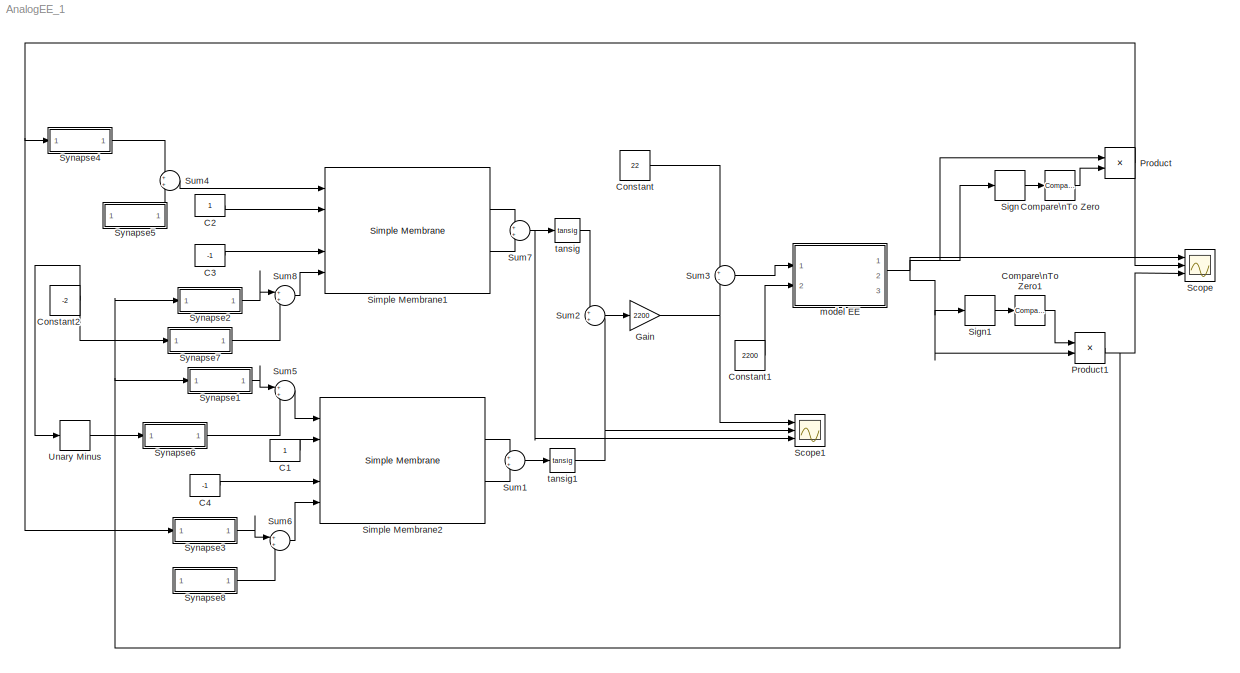
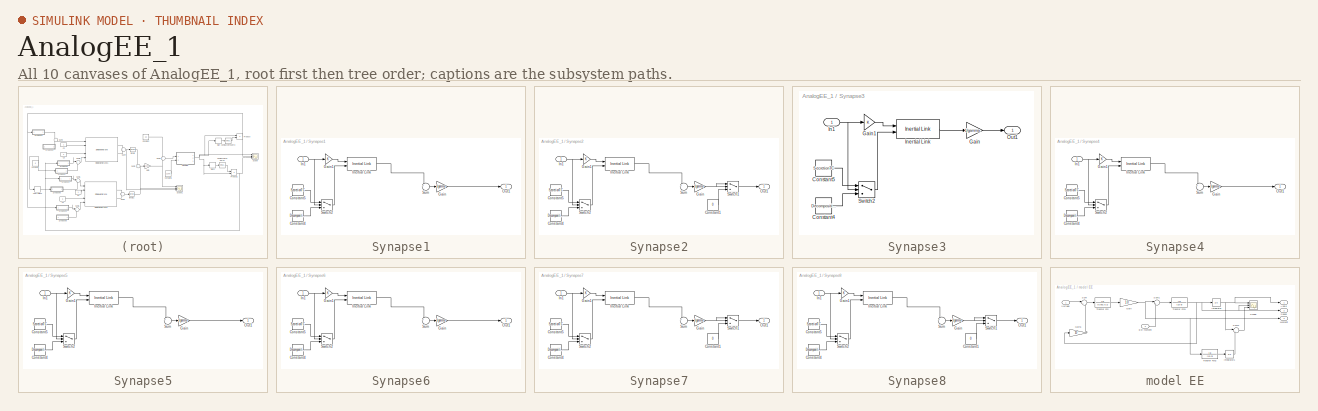
[diagram: thumbnail index - all 10 canvases of the model, root first then tree order]
MODEL AnalogEE_1
KIND model
BLOCK [Constant] C1
  OutDataType = sfix(16)
  OutScaling = 2^0
  SID = 1
BLOCK [Constant] C2
  OutDataType = sfix(16)
  OutScaling = 2^0
  SID = 2
BLOCK [Constant] C3
  OutDataType = sfix(16)
  OutScaling = 2^0
  SID = 3
  Value = -1
BLOCK [Constant] C4
  OutDataType = sfix(16)
  OutScaling = 2^0
  SID = 4
  Value = -1
BLOCK [Reference] Compare\nTo Zero  REF=simulink/Logic and Bit\nOperations/Compare\nTo Zero
  FunctionWithSeparateData = off
  LogicOutDataTypeMode = uint8
  Ports = [1, 1]
  RTWMemSecDataConstants = Inherit from model
  RTWMemSecDataInternal = Inherit from model
  RTWMemSecDataParameters = Inherit from model
  RTWMemSecFuncExecute = Inherit from model
  RTWMemSecFuncInitTerm = Inherit from model
  SID = 5
  ShowPortLabels = FromPortIcon
  SourceBlock = simulink/Logic and Bit\nOperations/Compare\nTo Zero
  SourceType = Compare To Zero
  SystemSampleTime = -1
  ZeroCross = off
  relop = >=
BLOCK [Reference] Compare\nTo Zero1  REF=simulink/Logic and Bit\nOperations/Compare\nTo Zero
  FunctionWithSeparateData = off
  LogicOutDataTypeMode = uint8
  Ports = [1, 1]
  RTWMemSecDataConstants = Inherit from model
  RTWMemSecDataInternal = Inherit from model
  RTWMemSecDataParameters = Inherit from model
  RTWMemSecFuncExecute = Inherit from model
  RTWMemSecFuncInitTerm = Inherit from model
  SID = 6
  ShowPortLabels = FromPortIcon
  SourceBlock = simulink/Logic and Bit\nOperations/Compare\nTo Zero
  SourceType = Compare To Zero
  SystemSampleTime = -1
  ZeroCross = off
  relop = <
BLOCK [Constant] Constant
  OutDataType = sfix(16)
  OutScaling = 2^0
  SID = 7
  Value = 22
BLOCK [Constant] Constant1
  OutDataType = sfix(16)
  OutScaling = 2^0
  SID = 8
  Value = 2200
BLOCK [Constant] Constant2
  OutDataType = sfix(16)
  OutScaling = 2^0
  SID = 47
  Value = -2
BLOCK [Gain] Gain
  Gain = 2200
  OutDataType = sfix(16)
  OutScaling = 2^0
  ParameterDataType = sfix(16)
  ParameterScaling = 2^0
  SID = 9
BLOCK [Product] Product
  InputSameDT = off
  OutDataType = sfix(16)
  OutDataTypeMode = Inherit via internal rule
  OutDataTypeStr = Inherit: Inherit via internal rule
  OutScaling = 2^0
  Ports = [2, 1]
  SID = 10
  SaturateOnIntegerOverflow = off
BLOCK [Product] Product1
  InputSameDT = off
  OutDataType = sfix(16)
  OutDataTypeMode = Inherit via internal rule
  OutDataTypeStr = Inherit: Inherit via internal rule
  OutScaling = 2^0
  Ports = [2, 1]
  SID = 11
  SaturateOnIntegerOverflow = off
BLOCK [Scope] Scope
  DataFormat = StructureWithTime
  Floating = off
  NumInputPorts = 3
  Ports = [3]
  SID = 12
  SampleTime = 0
  TimeRange = 3
  YMax = 0~1~0
  YMin = -0.2~-1~-0.2
BLOCK [Scope] Scope1
  DataFormat = StructureWithTime
  Floating = off
  NumInputPorts = 3
  Ports = [3]
  SID = 13
  SampleTime = 0
  SaveName = ScopeData1
  YMax = 1~1~1
  YMin = -1~-1~-1
BLOCK [Signum] Sign
  SID = 14
BLOCK [Signum] Sign1
  SID = 15
BLOCK [Reference] Simple Membrane1  REF=NeuroModelerLibrary/Neuron Elements/Simple Membrane
  ACm = 1e-9
  ARFm = 1e8
  ARm = 1e7
  ECm = 1e-9
  ERFm = 1e8
  ERm = 1e7
  FunctionWithSeparateData = off
  Ports = [5, 2]
  RTWMemSecDataConstants = Inherit from model
  RTWMemSecDataInternal = Inherit from model
  RTWMemSecDataParameters = Inherit from model
  RTWMemSecFuncExecute = Inherit from model
  RTWMemSecFuncInitTerm = Inherit from model
  SID = 16
  ShowPortLabels = FromPortIcon
  SourceBlock = NeuroModelerLibrary/Neuron Elements/Simple Membrane
  SystemSampleTime = -1
BLOCK [Reference] Simple Membrane2  REF=NeuroModelerLibrary/Neuron Elements/Simple Membrane
  ACm = 1e-9
  ARFm = 1e8
  ARm = 1e7
  ECm = 1e-9
  ERFm = 1e8
  ERm = 1e7
  FunctionWithSeparateData = off
  Ports = [5, 2]
  RTWMemSecDataConstants = Inherit from model
  RTWMemSecDataInternal = Inherit from model
  RTWMemSecDataParameters = Inherit from model
  RTWMemSecFuncExecute = Inherit from model
  RTWMemSecFuncInitTerm = Inherit from model
  SID = 17
  ShowPortLabels = FromPortIcon
  SourceBlock = NeuroModelerLibrary/Neuron Elements/Simple Membrane
  SystemSampleTime = -1
BLOCK [Sum] Sum1
  IconShape = round
  OutDataType = sfix(16)
  OutScaling = 2^0
  Ports = [2, 1]
  SID = 18
BLOCK [Sum] Sum2
  IconShape = round
  OutDataType = sfix(16)
  OutScaling = 2^0
  Ports = [2, 1]
  SID = 19
BLOCK [Sum] Sum3
  IconShape = round
  Inputs = +-
  OutDataType = sfix(16)
  OutScaling = 2^0
  Ports = [2, 1]
  SID = 20
BLOCK [Sum] Sum4
  IconShape = round
  OutDataType = sfix(16)
  OutScaling = 2^0
  Ports = [2, 1]
  SID = 21
BLOCK [Sum] Sum5
  IconShape = round
  OutDataType = sfix(16)
  OutScaling = 2^0
  Ports = [2, 1]
  SID = 48
BLOCK [Sum] Sum6
  IconShape = round
  OutDataType = sfix(16)
  OutScaling = 2^0
  Ports = [2, 1]
  SID = 51
BLOCK [Sum] Sum7
  IconShape = round
  OutDataType = sfix(16)
  OutScaling = 2^0
  Ports = [2, 1]
  SID = 22
BLOCK [Sum] Sum8
  IconShape = round
  OutDataType = sfix(16)
  OutScaling = 2^0
  Ports = [2, 1]
  SID = 52
BLOCK [SubSystem] Synapse1
  AncestorBlock = NeuroModelerLibrary/Neuron Elements/Synapse
  FunctionWithSeparateData = off
  MaskCallbackString = |||
  MaskEnableString = on,on,on,on
  MaskHideContents = off
  MaskIconFrame = on
  MaskIconOpaque = on
  MaskIconRotate = none
  MaskIconUnits = autoscale
  MaskPortRotate = default
  MaskPromptString = Mediator Secretion|Mediator Decomposition|ksi|gamma
  MaskStyleString = edit,edit,edit,edit
  MaskToolTipString = on,on,on,on
  MaskTunableValueString = on,on,on,on
  MaskValueString = 0.001|0.01|2|1e8
  MaskVariables = SecretionTC=@1;DecompositionTC=@2;ksi=@3;gamma=@4;
  MaskVisibilityString = on,on,on,on
  MinAlgLoopOccurrences = off
  Opaque = off
  Ports = [1, 1]
  PropExecContextOutsideSubsystem = off
  RTWSystemCode = Auto
  RequestExecContextInheritance = off
  SID = 23
BLOCK [Constant] Synapse1/Constant4
  OutDataType = sfix(16)
  OutScaling = 2^0
  SID = 2
  Value = DecompositionTC
BLOCK [Constant] Synapse1/Constant5
  OutDataType = sfix(16)
  OutScaling = 2^0
  SID = 3
  Value = SecretionTC
BLOCK [Gain] Synapse1/Gain
  Gain = 1/gamma
  OutDataType = sfix(16)
  OutScaling = 2^0
  ParameterDataType = sfix(16)
  ParameterScaling = 2^0
  SID = 4
BLOCK [Gain] Synapse1/Gain1
  OutDataType = sfix(16)
  OutScaling = 2^0
  ParameterDataType = sfix(16)
  ParameterScaling = 2^0
  SID = 5
BLOCK [Inport] Synapse1/In1
  IconDisplay = Port number
  OutDataType = sfix(16)
  OutScaling = 2^0
  SID = 1
BLOCK [Reference] Synapse1/Inertial Link  REF=NeuroModelerLibrary/Support/Inertial Link
  FunctionWithSeparateData = off
  Ports = [2, 1]
  RTWMemSecDataConstants = Inherit from model
  RTWMemSecDataInternal = Inherit from model
  RTWMemSecDataParameters = Inherit from model
  RTWMemSecFuncExecute = Inherit from model
  RTWMemSecFuncInitTerm = Inherit from model
  SID = 6
  ShowPortLabels = FromPortIcon
  SourceBlock = NeuroModelerLibrary/Support/Inertial Link
  SourceType = SubSystem
  SystemSampleTime = -1
BLOCK [Outport] Synapse1/Out1
  IconDisplay = Port number
  OutDataType = sfix(16)
  OutScaling = 2^0
  SID = 9
BLOCK [Sum] Synapse1/Sum
  IconShape = round
  InputSameDT = off
  Inputs = +-
  OutDataType = sfix(16)
  OutDataTypeMode = Inherit via internal rule
  OutDataTypeStr = Inherit: Inherit via internal rule
  OutScaling = 2^0
  Ports = [2, 1]
  SID = 7
BLOCK [Switch] Synapse1/Switch2
  InputSameDT = off
  SID = 8
  SaturateOnIntegerOverflow = off
  Threshold = 1
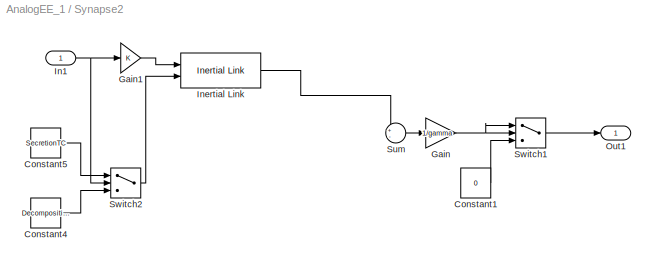
BLOCK [SubSystem] Synapse2
  AncestorBlock = NeuroModelerLibrary/Neuron Elements/Synapse
  FunctionWithSeparateData = off
  MaskCallbackString = |||
  MaskEnableString = on,on,on,on
  MaskHideContents = off
  MaskIconFrame = on
  MaskIconOpaque = on
  MaskIconRotate = none
  MaskIconUnits = autoscale
  MaskPortRotate = default
  MaskPromptString = Mediator Secretion|Mediator Decomposition|ksi|gamma
  MaskStyleString = edit,edit,edit,edit
  MaskToolTipString = on,on,on,on
  MaskTunableValueString = on,on,on,on
  MaskValueString = 0.001|0.01|2|1e8
  MaskVariables = SecretionTC=@1;DecompositionTC=@2;ksi=@3;gamma=@4;
  MaskVisibilityString = on,on,on,on
  MinAlgLoopOccurrences = off
  Opaque = off
  Ports = [1, 1]
  PropExecContextOutsideSubsystem = off
  RTWSystemCode = Auto
  RequestExecContextInheritance = off
  SID = 24
BLOCK [Constant] Synapse2/Constant1
  OutDataType = sfix(16)
  OutScaling = 2^0
  SID = 2
  Value = 0
BLOCK [Constant] Synapse2/Constant4
  OutDataType = sfix(16)
  OutScaling = 2^0
  SID = 3
  Value = DecompositionTC
BLOCK [Constant] Synapse2/Constant5
  OutDataType = sfix(16)
  OutScaling = 2^0
  SID = 4
  Value = SecretionTC
BLOCK [Gain] Synapse2/Gain
  Gain = 1/gamma
  OutDataType = sfix(16)
  OutScaling = 2^0
  ParameterDataType = sfix(16)
  ParameterScaling = 2^0
  SID = 5
BLOCK [Gain] Synapse2/Gain1
  OutDataType = sfix(16)
  OutScaling = 2^0
  ParameterDataType = sfix(16)
  ParameterScaling = 2^0
  SID = 6
BLOCK [Inport] Synapse2/In1
  IconDisplay = Port number
  OutDataType = sfix(16)
  OutScaling = 2^0
  SID = 1
BLOCK [Reference] Synapse2/Inertial Link  REF=NeuroModelerLibrary/Support/Inertial Link
  FunctionWithSeparateData = off
  Ports = [2, 1]
  RTWMemSecDataConstants = Inherit from model
  RTWMemSecDataInternal = Inherit from model
  RTWMemSecDataParameters = Inherit from model
  RTWMemSecFuncExecute = Inherit from model
  RTWMemSecFuncInitTerm = Inherit from model
  SID = 7
  ShowPortLabels = FromPortIcon
  SourceBlock = NeuroModelerLibrary/Support/Inertial Link
  SourceType = SubSystem
  SystemSampleTime = -1
BLOCK [Outport] Synapse2/Out1
  IconDisplay = Port number
  OutDataType = sfix(16)
  OutScaling = 2^0
  SID = 11
BLOCK [Sum] Synapse2/Sum
  IconShape = round
  InputSameDT = off
  Inputs = +-
  OutDataType = sfix(16)
  OutDataTypeMode = Inherit via internal rule
  OutDataTypeStr = Inherit: Inherit via internal rule
  OutScaling = 2^0
  Ports = [2, 1]
  SID = 8
BLOCK [Switch] Synapse2/Switch1
  InputSameDT = off
  SID = 9
  SaturateOnIntegerOverflow = off
BLOCK [Switch] Synapse2/Switch2
  InputSameDT = off
  SID = 10
  SaturateOnIntegerOverflow = off
  Threshold = 1
BLOCK [SubSystem] Synapse3
  AncestorBlock = NeuroModelerLibrary/Neuron Elements/Synapse
  FunctionWithSeparateData = off
  MaskCallbackString = |||
  MaskEnableString = on,on,on,on
  MaskHideContents = off
  MaskIconFrame = on
  MaskIconOpaque = on
  MaskIconRotate = none
  MaskIconUnits = autoscale
  MaskPortRotate = default
  MaskPromptString = Mediator Secretion|Mediator Decomposition|ksi|gamma
  MaskStyleString = edit,edit,edit,edit
  MaskToolTipString = on,on,on,on
  MaskTunableValueString = on,on,on,on
  MaskValueString = 0.001|0.01|2|1e8
  MaskVariables = SecretionTC=@1;DecompositionTC=@2;ksi=@3;gamma=@4;
  MaskVisibilityString = on,on,on,on
  MinAlgLoopOccurrences = off
  Opaque = off
  Ports = [1, 1]
  PropExecContextOutsideSubsystem = off
  RTWSystemCode = Auto
  RequestExecContextInheritance = off
  SID = 25
BLOCK [Constant] Synapse3/Constant4
  OutDataType = sfix(16)
  OutScaling = 2^0
  SID = 2
  Value = DecompositionTC
BLOCK [Constant] Synapse3/Constant5
  OutDataType = sfix(16)
  OutScaling = 2^0
  SID = 3
  Value = SecretionTC
BLOCK [Gain] Synapse3/Gain
  Gain = 1/gamma
  OutDataType = sfix(16)
  OutScaling = 2^0
  ParameterDataType = sfix(16)
  ParameterScaling = 2^0
  SID = 4
BLOCK [Gain] Synapse3/Gain1
  OutDataType = sfix(16)
  OutScaling = 2^0
  ParameterDataType = sfix(16)
  ParameterScaling = 2^0
  SID = 5
BLOCK [Inport] Synapse3/In1
  IconDisplay = Port number
  OutDataType = sfix(16)
  OutScaling = 2^0
  SID = 1
BLOCK [Reference] Synapse3/Inertial Link  REF=NeuroModelerLibrary/Support/Inertial Link
  FunctionWithSeparateData = off
  Ports = [2, 1]
  RTWMemSecDataConstants = Inherit from model
  RTWMemSecDataInternal = Inherit from model
  RTWMemSecDataParameters = Inherit from model
  RTWMemSecFuncExecute = Inherit from model
  RTWMemSecFuncInitTerm = Inherit from model
  SID = 6
  ShowPortLabels = FromPortIcon
  SourceBlock = NeuroModelerLibrary/Support/Inertial Link
  SourceType = SubSystem
  SystemSampleTime = -1
BLOCK [Outport] Synapse3/Out1
  IconDisplay = Port number
  OutDataType = sfix(16)
  OutScaling = 2^0
  SID = 8
BLOCK [Switch] Synapse3/Switch2
  InputSameDT = off
  SID = 7
  SaturateOnIntegerOverflow = off
  Threshold = 1
BLOCK [SubSystem] Synapse4
  AncestorBlock = NeuroModelerLibrary/Neuron Elements/Synapse
  FunctionWithSeparateData = off
  MaskCallbackString = |||
  MaskEnableString = on,on,on,on
  MaskHideContents = off
  MaskIconFrame = on
  MaskIconOpaque = on
  MaskIconRotate = none
  MaskIconUnits = autoscale
  MaskPortRotate = default
  MaskPromptString = Mediator Secretion|Mediator Decomposition|ksi|gamma
  MaskStyleString = edit,edit,edit,edit
  MaskToolTipString = on,on,on,on
  MaskTunableValueString = on,on,on,on
  MaskValueString = 0.001|0.01|2|1e8
  MaskVariables = SecretionTC=@1;DecompositionTC=@2;ksi=@3;gamma=@4;
  MaskVisibilityString = on,on,on,on
  MinAlgLoopOccurrences = off
  Opaque = off
  Ports = [1, 1]
  PropExecContextOutsideSubsystem = off
  RTWSystemCode = Auto
  RequestExecContextInheritance = off
  SID = 26
BLOCK [Constant] Synapse4/Constant4
  OutDataType = sfix(16)
  OutScaling = 2^0
  SID = 2
  Value = DecompositionTC
BLOCK [Constant] Synapse4/Constant5
  OutDataType = sfix(16)
  OutScaling = 2^0
  SID = 3
  Value = SecretionTC
BLOCK [Gain] Synapse4/Gain
  Gain = 1/gamma
  OutDataType = sfix(16)
  OutScaling = 2^0
  ParameterDataType = sfix(16)
  ParameterScaling = 2^0
  SID = 4
BLOCK [Gain] Synapse4/Gain1
  OutDataType = sfix(16)
  OutScaling = 2^0
  ParameterDataType = sfix(16)
  ParameterScaling = 2^0
  SID = 5
BLOCK [Inport] Synapse4/In1
  IconDisplay = Port number
  OutDataType = sfix(16)
  OutScaling = 2^0
  SID = 1
BLOCK [Reference] Synapse4/Inertial Link  REF=NeuroModelerLibrary/Support/Inertial Link
  FunctionWithSeparateData = off
  Ports = [2, 1]
  RTWMemSecDataConstants = Inherit from model
  RTWMemSecDataInternal = Inherit from model
  RTWMemSecDataParameters = Inherit from model
  RTWMemSecFuncExecute = Inherit from model
  RTWMemSecFuncInitTerm = Inherit from model
  SID = 6
  ShowPortLabels = FromPortIcon
  SourceBlock = NeuroModelerLibrary/Support/Inertial Link
  SourceType = SubSystem
  SystemSampleTime = -1
BLOCK [Outport] Synapse4/Out1
  IconDisplay = Port number
  OutDataType = sfix(16)
  OutScaling = 2^0
  SID = 9
BLOCK [Sum] Synapse4/Sum
  IconShape = round
  InputSameDT = off
  Inputs = +-
  OutDataType = sfix(16)
  OutDataTypeMode = Inherit via internal rule
  OutDataTypeStr = Inherit: Inherit via internal rule
  OutScaling = 2^0
  Ports = [2, 1]
  SID = 7
BLOCK [Switch] Synapse4/Switch2
  InputSameDT = off
  SID = 8
  SaturateOnIntegerOverflow = off
  Threshold = 1
BLOCK [SubSystem] Synapse5
  AncestorBlock = NeuroModelerLibrary/Neuron Elements/Synapse
  FunctionWithSeparateData = off
  MaskCallbackString = |||
  MaskEnableString = on,on,on,on
  MaskHideContents = off
  MaskIconFrame = on
  MaskIconOpaque = on
  MaskIconRotate = none
  MaskIconUnits = autoscale
  MaskPortRotate = default
  MaskPromptString = Mediator Secretion|Mediator Decomposition|ksi|gamma
  MaskStyleString = edit,edit,edit,edit
  MaskToolTipString = on,on,on,on
  MaskTunableValueString = on,on,on,on
  MaskValueString = 0.001|0.01|2|1e8
  MaskVariables = SecretionTC=@1;DecompositionTC=@2;ksi=@3;gamma=@4;
  MaskVisibilityString = on,on,on,on
  MinAlgLoopOccurrences = off
  Opaque = off
  Ports = [1, 1]
  PropExecContextOutsideSubsystem = off
  RTWSystemCode = Auto
  RequestExecContextInheritance = off
  SID = 46
BLOCK [Constant] Synapse5/Constant4
  OutDataType = sfix(16)
  OutScaling = 2^0
  SID = 2
  Value = DecompositionTC
BLOCK [Constant] Synapse5/Constant5
  OutDataType = sfix(16)
  OutScaling = 2^0
  SID = 3
  Value = SecretionTC
BLOCK [Gain] Synapse5/Gain
  Gain = 1/gamma
  OutDataType = sfix(16)
  OutScaling = 2^0
  ParameterDataType = sfix(16)
  ParameterScaling = 2^0
  SID = 4
BLOCK [Gain] Synapse5/Gain1
  OutDataType = sfix(16)
  OutScaling = 2^0
  ParameterDataType = sfix(16)
  ParameterScaling = 2^0
  SID = 5
BLOCK [Inport] Synapse5/In1
  IconDisplay = Port number
  OutDataType = sfix(16)
  OutScaling = 2^0
  SID = 1
BLOCK [Reference] Synapse5/Inertial Link  REF=NeuroModelerLibrary/Support/Inertial Link
  FunctionWithSeparateData = off
  Ports = [2, 1]
  RTWMemSecDataConstants = Inherit from model
  RTWMemSecDataInternal = Inherit from model
  RTWMemSecDataParameters = Inherit from model
  RTWMemSecFuncExecute = Inherit from model
  RTWMemSecFuncInitTerm = Inherit from model
  SID = 6
  ShowPortLabels = FromPortIcon
  SourceBlock = NeuroModelerLibrary/Support/Inertial Link
  SourceType = SubSystem
  SystemSampleTime = -1
BLOCK [Outport] Synapse5/Out1
  IconDisplay = Port number
  OutDataType = sfix(16)
  OutScaling = 2^0
  SID = 9
BLOCK [Sum] Synapse5/Sum
  IconShape = round
  InputSameDT = off
  Inputs = +-
  OutDataType = sfix(16)
  OutDataTypeMode = Inherit via internal rule
  OutDataTypeStr = Inherit: Inherit via internal rule
  OutScaling = 2^0
  Ports = [2, 1]
  SID = 7
BLOCK [Switch] Synapse5/Switch2
  InputSameDT = off
  SID = 8
  SaturateOnIntegerOverflow = off
  Threshold = 1
BLOCK [SubSystem] Synapse6
  AncestorBlock = NeuroModelerLibrary/Neuron Elements/Synapse
  FunctionWithSeparateData = off
  MaskCallbackString = |||
  MaskEnableString = on,on,on,on
  MaskHideContents = off
  MaskIconFrame = on
  MaskIconOpaque = on
  MaskIconRotate = none
  MaskIconUnits = autoscale
  MaskPortRotate = default
  MaskPromptString = Mediator Secretion|Mediator Decomposition|ksi|gamma
  MaskStyleString = edit,edit,edit,edit
  MaskToolTipString = on,on,on,on
  MaskTunableValueString = on,on,on,on
  MaskValueString = 0.001|0.01|2|1e8
  MaskVariables = SecretionTC=@1;DecompositionTC=@2;ksi=@3;gamma=@4;
  MaskVisibilityString = on,on,on,on
  MinAlgLoopOccurrences = off
  Opaque = off
  Ports = [1, 1]
  PropExecContextOutsideSubsystem = off
  RTWSystemCode = Auto
  RequestExecContextInheritance = off
  SID = 49
BLOCK [Constant] Synapse6/Constant4
  OutDataType = sfix(16)
  OutScaling = 2^0
  SID = 2
  Value = DecompositionTC
BLOCK [Constant] Synapse6/Constant5
  OutDataType = sfix(16)
  OutScaling = 2^0
  SID = 3
  Value = SecretionTC
BLOCK [Gain] Synapse6/Gain
  Gain = 1/gamma
  OutDataType = sfix(16)
  OutScaling = 2^0
  ParameterDataType = sfix(16)
  ParameterScaling = 2^0
  SID = 4
BLOCK [Gain] Synapse6/Gain1
  OutDataType = sfix(16)
  OutScaling = 2^0
  ParameterDataType = sfix(16)
  ParameterScaling = 2^0
  SID = 5
BLOCK [Inport] Synapse6/In1
  IconDisplay = Port number
  OutDataType = sfix(16)
  OutScaling = 2^0
  SID = 1
BLOCK [Reference] Synapse6/Inertial Link  REF=NeuroModelerLibrary/Support/Inertial Link
  FunctionWithSeparateData = off
  Ports = [2, 1]
  RTWMemSecDataConstants = Inherit from model
  RTWMemSecDataInternal = Inherit from model
  RTWMemSecDataParameters = Inherit from model
  RTWMemSecFuncExecute = Inherit from model
  RTWMemSecFuncInitTerm = Inherit from model
  SID = 6
  ShowPortLabels = FromPortIcon
  SourceBlock = NeuroModelerLibrary/Support/Inertial Link
  SourceType = SubSystem
  SystemSampleTime = -1
BLOCK [Outport] Synapse6/Out1
  IconDisplay = Port number
  OutDataType = sfix(16)
  OutScaling = 2^0
  SID = 9
BLOCK [Sum] Synapse6/Sum
  IconShape = round
  InputSameDT = off
  Inputs = +-
  OutDataType = sfix(16)
  OutDataTypeMode = Inherit via internal rule
  OutDataTypeStr = Inherit: Inherit via internal rule
  OutScaling = 2^0
  Ports = [2, 1]
  SID = 7
BLOCK [Switch] Synapse6/Switch2
  InputSameDT = off
  SID = 8
  SaturateOnIntegerOverflow = off
  Threshold = 1
BLOCK [SubSystem] Synapse7
  AncestorBlock = NeuroModelerLibrary/Neuron Elements/Synapse
  FunctionWithSeparateData = off
  MaskCallbackString = |||
  MaskEnableString = on,on,on,on
  MaskHideContents = off
  MaskIconFrame = on
  MaskIconOpaque = on
  MaskIconRotate = none
  MaskIconUnits = autoscale
  MaskPortRotate = default
  MaskPromptString = Mediator Secretion|Mediator Decomposition|ksi|gamma
  MaskStyleString = edit,edit,edit,edit
  MaskToolTipString = on,on,on,on
  MaskTunableValueString = on,on,on,on
  MaskValueString = 0.001|0.01|2|1e8
  MaskVariables = SecretionTC=@1;DecompositionTC=@2;ksi=@3;gamma=@4;
  MaskVisibilityString = on,on,on,on
  MinAlgLoopOccurrences = off
  Opaque = off
  Ports = [1, 1]
  PropExecContextOutsideSubsystem = off
  RTWSystemCode = Auto
  RequestExecContextInheritance = off
  SID = 53
BLOCK [Constant] Synapse7/Constant1
  OutDataType = sfix(16)
  OutScaling = 2^0
  SID = 2
  Value = 0
BLOCK [Constant] Synapse7/Constant4
  OutDataType = sfix(16)
  OutScaling = 2^0
  SID = 3
  Value = DecompositionTC
BLOCK [Constant] Synapse7/Constant5
  OutDataType = sfix(16)
  OutScaling = 2^0
  SID = 4
  Value = SecretionTC
BLOCK [Gain] Synapse7/Gain
  Gain = 1/gamma
  OutDataType = sfix(16)
  OutScaling = 2^0
  ParameterDataType = sfix(16)
  ParameterScaling = 2^0
  SID = 5
BLOCK [Gain] Synapse7/Gain1
  OutDataType = sfix(16)
  OutScaling = 2^0
  ParameterDataType = sfix(16)
  ParameterScaling = 2^0
  SID = 6
BLOCK [Inport] Synapse7/In1
  IconDisplay = Port number
  OutDataType = sfix(16)
  OutScaling = 2^0
  SID = 1
BLOCK [Reference] Synapse7/Inertial Link  REF=NeuroModelerLibrary/Support/Inertial Link
  FunctionWithSeparateData = off
  Ports = [2, 1]
  RTWMemSecDataConstants = Inherit from model
  RTWMemSecDataInternal = Inherit from model
  RTWMemSecDataParameters = Inherit from model
  RTWMemSecFuncExecute = Inherit from model
  RTWMemSecFuncInitTerm = Inherit from model
  SID = 7
  ShowPortLabels = FromPortIcon
  SourceBlock = NeuroModelerLibrary/Support/Inertial Link
  SourceType = SubSystem
  SystemSampleTime = -1
BLOCK [Outport] Synapse7/Out1
  IconDisplay = Port number
  OutDataType = sfix(16)
  OutScaling = 2^0
  SID = 11
BLOCK [Sum] Synapse7/Sum
  IconShape = round
  InputSameDT = off
  Inputs = +-
  OutDataType = sfix(16)
  OutDataTypeMode = Inherit via internal rule
  OutDataTypeStr = Inherit: Inherit via internal rule
  OutScaling = 2^0
  Ports = [2, 1]
  SID = 8
BLOCK [Switch] Synapse7/Switch1
  InputSameDT = off
  SID = 9
  SaturateOnIntegerOverflow = off
BLOCK [Switch] Synapse7/Switch2
  InputSameDT = off
  SID = 10
  SaturateOnIntegerOverflow = off
  Threshold = 1
BLOCK [SubSystem] Synapse8
  AncestorBlock = NeuroModelerLibrary/Neuron Elements/Synapse
  FunctionWithSeparateData = off
  MaskCallbackString = |||
  MaskEnableString = on,on,on,on
  MaskHideContents = off
  MaskIconFrame = on
  MaskIconOpaque = on
  MaskIconRotate = none
  MaskIconUnits = autoscale
  MaskPortRotate = default
  MaskPromptString = Mediator Secretion|Mediator Decomposition|ksi|gamma
  MaskStyleString = edit,edit,edit,edit
  MaskToolTipString = on,on,on,on
  MaskTunableValueString = on,on,on,on
  MaskValueString = 0.001|0.01|2|1e8
  MaskVariables = SecretionTC=@1;DecompositionTC=@2;ksi=@3;gamma=@4;
  MaskVisibilityString = on,on,on,on
  MinAlgLoopOccurrences = off
  Opaque = off
  Ports = [1, 1]
  PropExecContextOutsideSubsystem = off
  RTWSystemCode = Auto
  RequestExecContextInheritance = off
  SID = 54
BLOCK [Constant] Synapse8/Constant1
  OutDataType = sfix(16)
  OutScaling = 2^0
  SID = 2
  Value = 0
BLOCK [Constant] Synapse8/Constant4
  OutDataType = sfix(16)
  OutScaling = 2^0
  SID = 3
  Value = DecompositionTC
BLOCK [Constant] Synapse8/Constant5
  OutDataType = sfix(16)
  OutScaling = 2^0
  SID = 4
  Value = SecretionTC
BLOCK [Gain] Synapse8/Gain
  Gain = 1/gamma
  OutDataType = sfix(16)
  OutScaling = 2^0
  ParameterDataType = sfix(16)
  ParameterScaling = 2^0
  SID = 5
BLOCK [Gain] Synapse8/Gain1
  OutDataType = sfix(16)
  OutScaling = 2^0
  ParameterDataType = sfix(16)
  ParameterScaling = 2^0
  SID = 6
BLOCK [Inport] Synapse8/In1
  IconDisplay = Port number
  OutDataType = sfix(16)
  OutScaling = 2^0
  SID = 1
BLOCK [Reference] Synapse8/Inertial Link  REF=NeuroModelerLibrary/Support/Inertial Link
  FunctionWithSeparateData = off
  Ports = [2, 1]
  RTWMemSecDataConstants = Inherit from model
  RTWMemSecDataInternal = Inherit from model
  RTWMemSecDataParameters = Inherit from model
  RTWMemSecFuncExecute = Inherit from model
  RTWMemSecFuncInitTerm = Inherit from model
  SID = 7
  ShowPortLabels = FromPortIcon
  SourceBlock = NeuroModelerLibrary/Support/Inertial Link
  SourceType = SubSystem
  SystemSampleTime = -1
BLOCK [Outport] Synapse8/Out1
  IconDisplay = Port number
  OutDataType = sfix(16)
  OutScaling = 2^0
  SID = 11
BLOCK [Sum] Synapse8/Sum
  IconShape = round
  InputSameDT = off
  Inputs = +-
  OutDataType = sfix(16)
  OutDataTypeMode = Inherit via internal rule
  OutDataTypeStr = Inherit: Inherit via internal rule
  OutScaling = 2^0
  Ports = [2, 1]
  SID = 8
BLOCK [Switch] Synapse8/Switch1
  InputSameDT = off
  SID = 9
  SaturateOnIntegerOverflow = off
BLOCK [Switch] Synapse8/Switch2
  InputSameDT = off
  SID = 10
  SaturateOnIntegerOverflow = off
  Threshold = 1
BLOCK [UnaryMinus] Unary Minus
  SID = 50
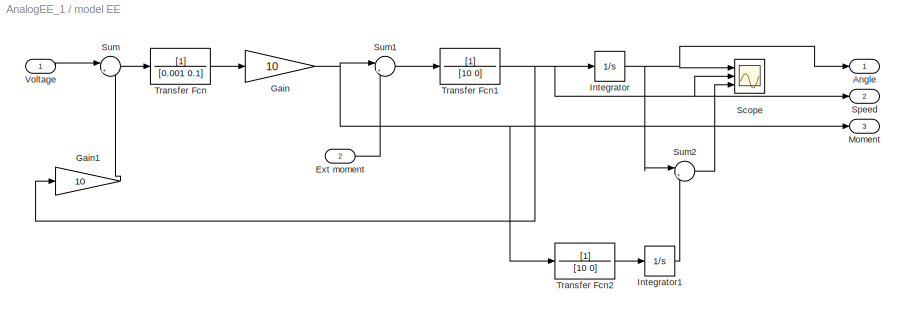
BLOCK [SubSystem] model EE
  FunctionWithSeparateData = off
  MaskHideContents = off
  MinAlgLoopOccurrences = off
  Opaque = off
  Ports = [2, 3]
  PropExecContextOutsideSubsystem = off
  RTWSystemCode = Auto
  RequestExecContextInheritance = off
  SID = 27
BLOCK [Outport] model EE/Angle
  IconDisplay = Port number
  SID = 41
  Tag = Angle
BLOCK [Inport] model EE/Ext moment
  IconDisplay = Port number
  Port = 2
  SID = 29
BLOCK [Gain] model EE/Gain
  Gain = 10
  OutDataTypeMode = Inherit via internal rule
  OutDataTypeStr = Inherit: Inherit via internal rule
  ParamDataTypeStr = Inherit: Inherit via internal rule
  ParameterDataTypeMode = Inherit via internal rule
  SID = 30
  SaturateOnIntegerOverflow = off
BLOCK [Gain] model EE/Gain1
  Gain = 10
  OutDataTypeMode = Inherit via internal rule
  OutDataTypeStr = Inherit: Inherit via internal rule
  ParamDataTypeStr = Inherit: Inherit via internal rule
  ParameterDataTypeMode = Inherit via internal rule
  SID = 31
  SaturateOnIntegerOverflow = off
BLOCK [Integrator] model EE/Integrator
  Ports = [1, 1]
  SID = 32
BLOCK [Integrator] model EE/Integrator1
  Ports = [1, 1]
  SID = 33
BLOCK [Outport] model EE/Moment
  IconDisplay = Port number
  Port = 3
  SID = 43
BLOCK [Scope] model EE/Scope
  DataFormat = StructureWithTime
  Floating = off
  NumInputPorts = 3
  Ports = [3]
  SID = 34
  SampleTime = 0
  YMax = 100000~5e+007~250000
  YMin = -700000~-4.5e+008~-1.5e+006
BLOCK [Outport] model EE/Speed
  IconDisplay = Port number
  Port = 2
  SID = 42
BLOCK [Sum] model EE/Sum
  IconShape = round
  InputSameDT = off
  Inputs = |+-
  OutDataTypeMode = Inherit via internal rule
  OutDataTypeStr = Inherit: Inherit via internal rule
  Ports = [2, 1]
  SID = 35
  SaturateOnIntegerOverflow = off
BLOCK [Sum] model EE/Sum1
  IconShape = round
  InputSameDT = off
  Inputs = |+-
  OutDataTypeMode = Inherit via internal rule
  OutDataTypeStr = Inherit: Inherit via internal rule
  Ports = [2, 1]
  SID = 36
  SaturateOnIntegerOverflow = off
BLOCK [Sum] model EE/Sum2
  IconShape = round
  InputSameDT = off
  Inputs = |++
  OutDataTypeMode = Inherit via internal rule
  OutDataTypeStr = Inherit: Inherit via internal rule
  Ports = [2, 1]
  SID = 37
  SaturateOnIntegerOverflow = off
BLOCK [TransferFcn] model EE/Transfer Fcn
  Denominator = [0.001 0.1]
  SID = 38
BLOCK [TransferFcn] model EE/Transfer Fcn1
  Denominator = [10 0]
  SID = 39
BLOCK [TransferFcn] model EE/Transfer Fcn2
  Denominator = [10 0]
  SID = 40
BLOCK [Inport] model EE/Voltage
  IconDisplay = Port number
  SID = 28
BLOCK [Reference] tansig  REF=neural/Transfer Functions/tansig
  FunctionWithSeparateData = off
  Ports = [1, 1]
  RTWMemSecDataConstants = Inherit from model
  RTWMemSecDataInternal = Inherit from model
  RTWMemSecDataParameters = Inherit from model
  RTWMemSecFuncExecute = Inherit from model
  RTWMemSecFuncInitTerm = Inherit from model
  SID = 44
  ShowPortLabels = FromPortIcon
  SourceBlock = neural/Transfer Functions/tansig
  SystemSampleTime = -1
BLOCK [Reference] tansig1  REF=neural/Transfer Functions/tansig
  FunctionWithSeparateData = off
  Ports = [1, 1]
  RTWMemSecDataConstants = Inherit from model
  RTWMemSecDataInternal = Inherit from model
  RTWMemSecDataParameters = Inherit from model
  RTWMemSecFuncExecute = Inherit from model
  RTWMemSecFuncInitTerm = Inherit from model
  SID = 45
  ShowPortLabels = FromPortIcon
  SourceBlock = neural/Transfer Functions/tansig
  SystemSampleTime = -1
LINE C1:1 -> Simple Membrane2:2
LINE C2:1 -> Simple Membrane1:2
LINE C3:1 -> Simple Membrane1:4
LINE C4:1 -> Simple Membrane2:4
LINE Compare\nTo Zero1:1 -> Product1:1
LINE Compare\nTo Zero:1 -> Product:2
LINE Constant1:1 -> model EE:2
NET Constant2:1 -> Synapse7:1, Unary Minus:1
LINE Constant:1 -> Sum3:1
NET Gain:1 -> Scope1:1, Sum3:2
NET Product1:1 -> Scope:3, Synapse1:1, Synapse2:1
NET Product:1 -> Scope:2, Synapse3:1, Synapse4:1
LINE Sign1:1 -> Compare\nTo Zero1:1
LINE Sign:1 -> Compare\nTo Zero:1
LINE Simple Membrane1:1 -> Sum7:1
LINE Simple Membrane1:2 -> Sum7:2
LINE Simple Membrane2:1 -> Sum1:1
LINE Simple Membrane2:2 -> Sum1:2
LINE Sum1:1 -> tansig1:1
LINE Sum2:1 -> Gain:1
LINE Sum3:1 -> model EE:1
LINE Sum4:1 -> Simple Membrane1:1
LINE Sum5:1 -> Simple Membrane2:1
LINE Sum6:1 -> Simple Membrane2:5
NET Sum7:1 -> Scope1:3, tansig:1
LINE Sum8:1 -> Simple Membrane1:5
LINE Synapse1/Constant4:1 -> Synapse1/Switch2:3
LINE Synapse1/Constant5:1 -> Synapse1/Switch2:1
LINE Synapse1/Gain1:1 -> Synapse1/Inertial Link:1
LINE Synapse1/Gain:1 -> Synapse1/Out1:1
NET Synapse1/In1:1 -> Synapse1/Gain1:1, Synapse1/Switch2:2
LINE Synapse1/Inertial Link:1 -> Synapse1/Sum:1
LINE Synapse1/Sum:1 -> Synapse1/Gain:1
LINE Synapse1/Switch2:1 -> Synapse1/Inertial Link:2
LINE Synapse1:1 -> Sum5:1
LINE Synapse2/Constant1:1 -> Synapse2/Switch1:3
LINE Synapse2/Constant4:1 -> Synapse2/Switch2:3
LINE Synapse2/Constant5:1 -> Synapse2/Switch2:1
LINE Synapse2/Gain1:1 -> Synapse2/Inertial Link:1
NET Synapse2/Gain:1 -> Synapse2/Switch1:1, Synapse2/Switch1:2
NET Synapse2/In1:1 -> Synapse2/Gain1:1, Synapse2/Switch2:2
LINE Synapse2/Inertial Link:1 -> Synapse2/Sum:1
LINE Synapse2/Sum:1 -> Synapse2/Gain:1
LINE Synapse2/Switch1:1 -> Synapse2/Out1:1
LINE Synapse2/Switch2:1 -> Synapse2/Inertial Link:2
LINE Synapse2:1 -> Sum8:1
LINE Synapse3/Constant4:1 -> Synapse3/Switch2:3
LINE Synapse3/Constant5:1 -> Synapse3/Switch2:1
LINE Synapse3/Gain1:1 -> Synapse3/Inertial Link:1
LINE Synapse3/Gain:1 -> Synapse3/Out1:1
NET Synapse3/In1:1 -> Synapse3/Gain1:1, Synapse3/Switch2:2
LINE Synapse3/Inertial Link:1 -> Synapse3/Gain:1
LINE Synapse3/Switch2:1 -> Synapse3/Inertial Link:2
LINE Synapse3:1 -> Sum6:1
LINE Synapse4/Constant4:1 -> Synapse4/Switch2:3
LINE Synapse4/Constant5:1 -> Synapse4/Switch2:1
LINE Synapse4/Gain1:1 -> Synapse4/Inertial Link:1
LINE Synapse4/Gain:1 -> Synapse4/Out1:1
NET Synapse4/In1:1 -> Synapse4/Gain1:1, Synapse4/Switch2:2
LINE Synapse4/Inertial Link:1 -> Synapse4/Sum:1
LINE Synapse4/Sum:1 -> Synapse4/Gain:1
LINE Synapse4/Switch2:1 -> Synapse4/Inertial Link:2
LINE Synapse4:1 -> Sum4:1
LINE Synapse5/Constant4:1 -> Synapse5/Switch2:3
LINE Synapse5/Constant5:1 -> Synapse5/Switch2:1
LINE Synapse5/Gain1:1 -> Synapse5/Inertial Link:1
LINE Synapse5/Gain:1 -> Synapse5/Out1:1
NET Synapse5/In1:1 -> Synapse5/Gain1:1, Synapse5/Switch2:2
LINE Synapse5/Inertial Link:1 -> Synapse5/Sum:1
LINE Synapse5/Sum:1 -> Synapse5/Gain:1
LINE Synapse5/Switch2:1 -> Synapse5/Inertial Link:2
LINE Synapse5:1 -> Sum4:2
LINE Synapse6/Constant4:1 -> Synapse6/Switch2:3
LINE Synapse6/Constant5:1 -> Synapse6/Switch2:1
LINE Synapse6/Gain1:1 -> Synapse6/Inertial Link:1
LINE Synapse6/Gain:1 -> Synapse6/Out1:1
NET Synapse6/In1:1 -> Synapse6/Gain1:1, Synapse6/Switch2:2
LINE Synapse6/Inertial Link:1 -> Synapse6/Sum:1
LINE Synapse6/Sum:1 -> Synapse6/Gain:1
LINE Synapse6/Switch2:1 -> Synapse6/Inertial Link:2
LINE Synapse6:1 -> Sum5:2
LINE Synapse7/Constant1:1 -> Synapse7/Switch1:3
LINE Synapse7/Constant4:1 -> Synapse7/Switch2:3
LINE Synapse7/Constant5:1 -> Synapse7/Switch2:1
LINE Synapse7/Gain1:1 -> Synapse7/Inertial Link:1
NET Synapse7/Gain:1 -> Synapse7/Switch1:1, Synapse7/Switch1:2
NET Synapse7/In1:1 -> Synapse7/Gain1:1, Synapse7/Switch2:2
LINE Synapse7/Inertial Link:1 -> Synapse7/Sum:1
LINE Synapse7/Sum:1 -> Synapse7/Gain:1
LINE Synapse7/Switch1:1 -> Synapse7/Out1:1
LINE Synapse7/Switch2:1 -> Synapse7/Inertial Link:2
LINE Synapse7:1 -> Sum8:2
LINE Synapse8/Constant1:1 -> Synapse8/Switch1:3
LINE Synapse8/Constant4:1 -> Synapse8/Switch2:3
LINE Synapse8/Constant5:1 -> Synapse8/Switch2:1
LINE Synapse8/Gain1:1 -> Synapse8/Inertial Link:1
NET Synapse8/Gain:1 -> Synapse8/Switch1:1, Synapse8/Switch1:2
NET Synapse8/In1:1 -> Synapse8/Gain1:1, Synapse8/Switch2:2
LINE Synapse8/Inertial Link:1 -> Synapse8/Sum:1
LINE Synapse8/Sum:1 -> Synapse8/Gain:1
LINE Synapse8/Switch1:1 -> Synapse8/Out1:1
LINE Synapse8/Switch2:1 -> Synapse8/Inertial Link:2
LINE Synapse8:1 -> Sum6:2
LINE Unary Minus:1 -> Synapse6:1
LINE model EE/Ext moment:1 -> model EE/Sum1:2
LINE model EE/Gain1:1 -> model EE/Sum:2
NET model EE/Gain:1 -> model EE/Moment:1, model EE/Sum1:1, model EE/Transfer Fcn2:1
LINE model EE/Integrator1:1 -> model EE/Sum2:2
NET model EE/Integrator:1 -> model EE/Angle:1, model EE/Scope:1, model EE/Sum2:1
LINE model EE/Sum1:1 -> model EE/Transfer Fcn1:1
LINE model EE/Sum2:1 -> model EE/Scope:3
LINE model EE/Sum:1 -> model EE/Transfer Fcn:1
NET model EE/Transfer Fcn1:1 -> model EE/Gain1:1, model EE/Integrator:1, model EE/Scope:2, model EE/Speed:1
LINE model EE/Transfer Fcn2:1 -> model EE/Integrator1:1
LINE model EE/Transfer Fcn:1 -> model EE/Gain:1
LINE model EE/Voltage:1 -> model EE/Sum:1
NET model EE:1 -> Product1:2, Product:1, Scope:1, Sign1:1, Sign:1
NET tansig1:1 -> Scope1:2, Sum2:2
LINE tansig:1 -> Sum2:1
note: NET lines group one-source signal fan-out (src -> all destinations, sorted); 1:1 wires keep LINE
